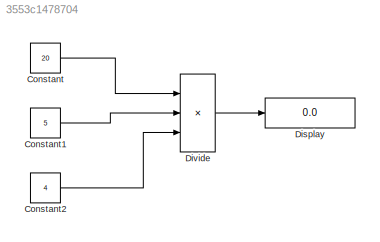
MODEL slx_3553c1478704
KIND model
CONFIG AbsTol = auto
CONFIG EnableMultiTasking = off
CONFIG FixedStep = auto
CONFIG MaxStep = auto
CONFIG MinStep = auto
CONFIG RelTol = 1e-3
CONFIG SampleTimeConstraint = Unconstrained
CONFIG Solver = VariableStepAuto
CONFIG SolverName = VariableStepAuto
CONFIG StartTime = 0.0
CONFIG StopTime = 10.0
BLOCK [Constant] Constant
  Value = 20
BLOCK [Constant] Constant1
  Value = 5
BLOCK [Constant] Constant2
  Value = 4
BLOCK [Display] Display
  Decimation = 1
  Ports = [1]
BLOCK [Product] Divide
  Inputs = *//
  Ports = [3, 1]
LINE Constant1:1 -> Divide:2
LINE Constant2:1 -> Divide:3
LINE Constant:1 -> Divide:1
LINE Divide:1 -> Display:1
